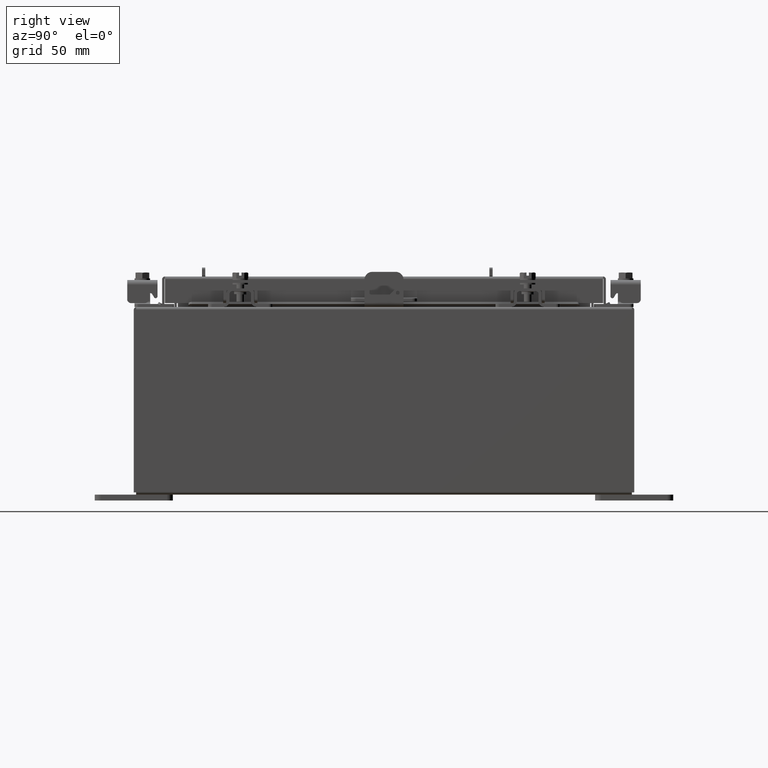
[diagram: clean part render]
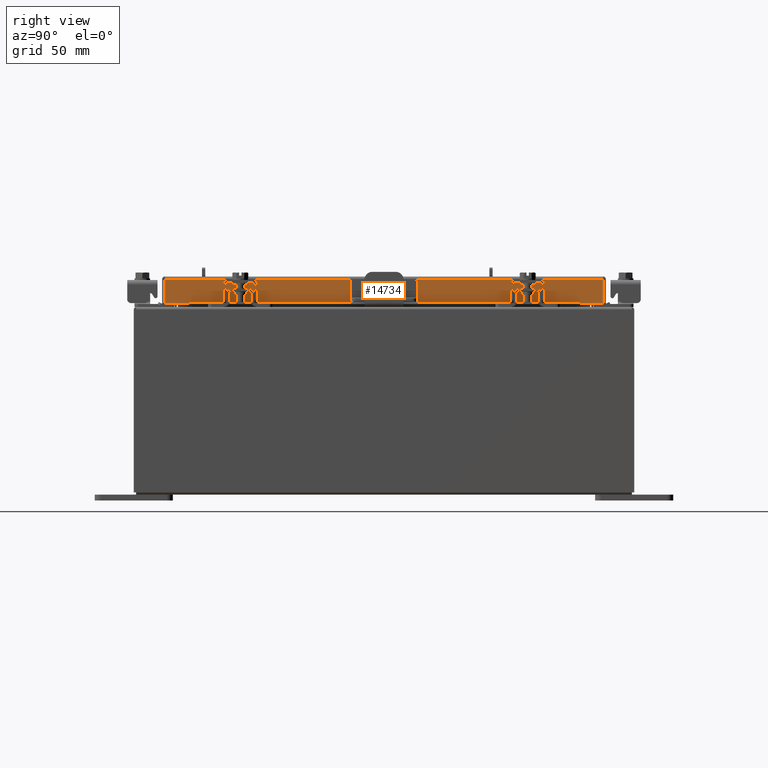
[diagram: same view with one face highlighted and labeled with its STEP entity id]
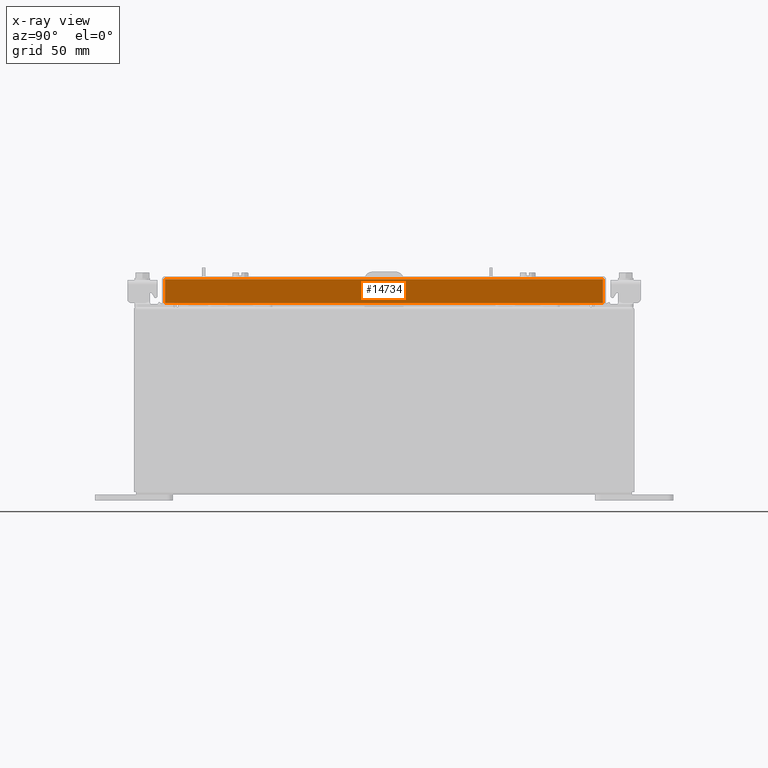
[diagram: x-ray of the same camera — body ghosted, the highlighted face saturated]
A machine part, right view. The second image highlights one B-rep face of the part: STEP entity #14734.
The next image is the same camera in x-ray: the body ghosted, the highlighted face saturated — about 0% of this face is hidden behind the body in this view.
In plain terms, the highlighted planar face has unit normal (1, 0, 0).
Its self-contained STEP definition (entity closure, byte-faithful):
#138 = DIRECTION ( 'NONE',  ( 0.0000000000000000000, -1.000000000000000000, 0.0000000000000000000 ) ) ;
#312 = CARTESIAN_POINT ( 'NONE',  ( 5.077999999999998500, 7.005157864376269700, -0.08769999999999918100 ) ) ;
#2627 = VECTOR ( 'NONE', #18956, 39.37007874015748100 ) ;
#2819 = CARTESIAN_POINT ( 'NONE',  ( 5.077999999999998500, 0.0000000000000000000, 1.420560956705417000E-014 ) ) ;
#3052 = LINE ( 'NONE', #18180, #20656 ) ;
#3272 = VECTOR ( 'NONE', #6745, 39.37007874015748100 ) ;
#3856 = VERTEX_POINT ( 'NONE', #312 ) ;
#4358 = ORIENTED_EDGE ( 'NONE', *, *, #18122, .F. ) ;
#4448 = DIRECTION ( 'NONE',  ( 2.818880942772360100E-015, 0.0000000000000000000, -1.000000000000000000 ) ) ;
#5029 = CARTESIAN_POINT ( 'NONE',  ( 5.078000000000001200, -7.094000000000000300, -0.8499999999999999800 ) ) ;
#5508 = EDGE_CURVE ( 'NONE', #3856, #12944, #10385, .T. ) ;
#6381 = VERTEX_POINT ( 'NONE', #19860 ) ;
#6745 = DIRECTION ( 'NONE',  ( -2.818880942772360100E-015, -6.982962677686267500E-015, 1.000000000000000000 ) ) ;
#6943 = VECTOR ( 'NONE', #138, 39.37007874015748100 ) ;
#7987 = DIRECTION ( 'NONE',  ( -2.171061248348209200E-031, -1.000000000000000000, 7.701855070945201600E-017 ) ) ;
#8528 = LINE ( 'NONE', #5029, #16537 ) ;
#8916 = EDGE_CURVE ( 'NONE', #9996, #6381, #8528, .T. ) ;
#8928 = ORIENTED_EDGE ( 'NONE', *, *, #14018, .F. ) ;
#9103 = ORIENTED_EDGE ( 'NONE', *, *, #11995, .T. ) ;
#9165 = EDGE_LOOP ( 'NONE', ( #4358, #10035, #8928, #13863, #9103, #18752 ) ) ;
#9996 = VERTEX_POINT ( 'NONE', #11597 ) ;
#10035 = ORIENTED_EDGE ( 'NONE', *, *, #8916, .F. ) ;
#10385 = LINE ( 'NONE', #19196, #15628 ) ;
#11448 = VERTEX_POINT ( 'NONE', #19397 ) ;
#11454 = EDGE_CURVE ( 'NONE', #11448, #15892, #12222, .T. ) ;
#11526 = DIRECTION ( 'NONE',  ( 0.0000000000000000000, -1.000000000000000000, 0.0000000000000000000 ) ) ;
#11590 = CARTESIAN_POINT ( 'NONE',  ( 5.077999999999998500, -7.005157864376269700, -0.07470000000000015500 ) ) ;
#11597 = CARTESIAN_POINT ( 'NONE',  ( 5.077999999999996700, -6.255157864376264400, -0.8500000000000010900 ) ) ;
#11995 = EDGE_CURVE ( 'NONE', #11448, #3856, #19717, .T. ) ;
#12215 = CARTESIAN_POINT ( 'NONE',  ( 5.077999999999998500, -7.005157864376269700, -0.08769999999999918100 ) ) ;
#12222 = LINE ( 'NONE', #16177, #6943 ) ;
#12341 = AXIS2_PLACEMENT_3D ( 'NONE', #2819, #14067, #4448 ) ;
#12944 = VERTEX_POINT ( 'NONE', #12215 ) ;
#13331 = FACE_OUTER_BOUND ( 'NONE', #9165, .T. ) ;
#13863 = ORIENTED_EDGE ( 'NONE', *, *, #11454, .F. ) ;
#14018 = EDGE_CURVE ( 'NONE', #15892, #9996, #3052, .T. ) ;
#14067 = DIRECTION ( 'NONE',  ( 1.000000000000000000, 0.0000000000000000000, 2.818880942772360100E-015 ) ) ;
#14734 = ADVANCED_FACE ( 'NONE', ( #13331 ), #18828, .T. ) ;
#15065 = CARTESIAN_POINT ( 'NONE',  ( 5.077999999999996700, 6.255157864376273300, -0.8500000000000010900 ) ) ;
#15568 = LINE ( 'NONE', #11590, #3272 ) ;
#15628 = VECTOR ( 'NONE', #7987, 39.37007874015748100 ) ;
#15892 = VERTEX_POINT ( 'NONE', #15065 ) ;
#16177 = CARTESIAN_POINT ( 'NONE',  ( 5.078000000000001200, -7.094000000000000300, -0.8499999999999999800 ) ) ;
#16537 = VECTOR ( 'NONE', #11526, 39.37007874015748100 ) ;
#16575 = DIRECTION ( 'NONE',  ( 0.0000000000000000000, -1.000000000000000000, 0.0000000000000000000 ) ) ;
#17317 = CARTESIAN_POINT ( 'NONE',  ( 5.077999999999998500, 7.005157864376269700, 6.337887345301090800E-014 ) ) ;
#18122 = EDGE_CURVE ( 'NONE', #6381, #12944, #15568, .T. ) ;
#18180 = CARTESIAN_POINT ( 'NONE',  ( 5.077999999999996700, 6.255157864376273300, -0.8500000000000010900 ) ) ;
#18752 = ORIENTED_EDGE ( 'NONE', *, *, #5508, .T. ) ;
#18828 = PLANE ( 'NONE',  #12341 ) ;
#18956 = DIRECTION ( 'NONE',  ( -2.818880942772360100E-015, -6.982962677686267500E-015, 1.000000000000000000 ) ) ;
#19196 = CARTESIAN_POINT ( 'NONE',  ( 5.077999999999998500, -6.754526832677085000E-018, -0.08769999999999918100 ) ) ;
#19397 = CARTESIAN_POINT ( 'NONE',  ( 5.078000000000001200, 7.005157864376275100, -0.8499999999999999800 ) ) ;
#19717 = LINE ( 'NONE', #17317, #2627 ) ;
#19860 = CARTESIAN_POINT ( 'NONE',  ( 5.078000000000001200, -7.005157864376264400, -0.8499999999999999800 ) ) ;
#20656 = VECTOR ( 'NONE', #16575, 39.37007874015748100 ) ;